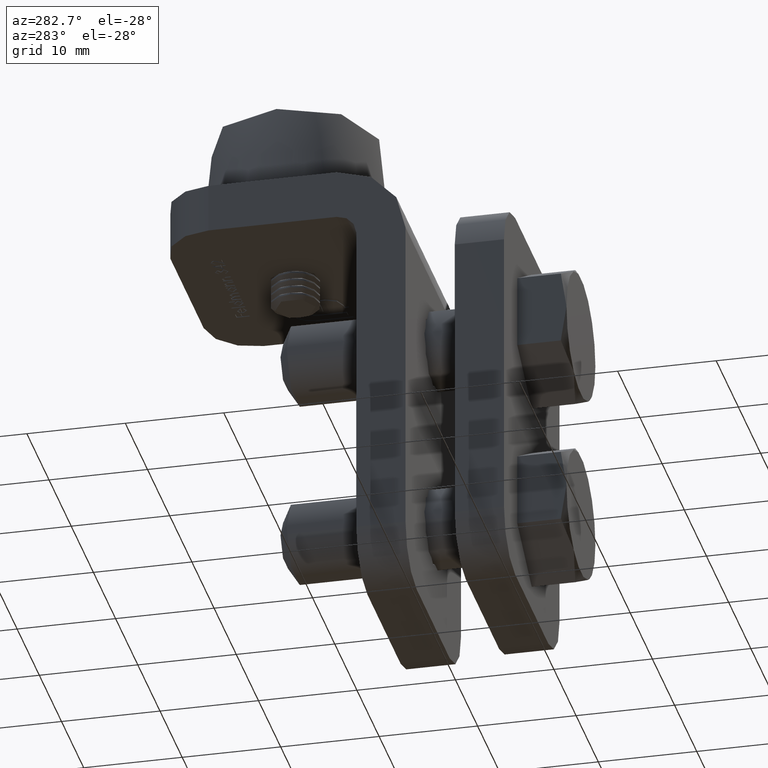
[diagram: clean part render]
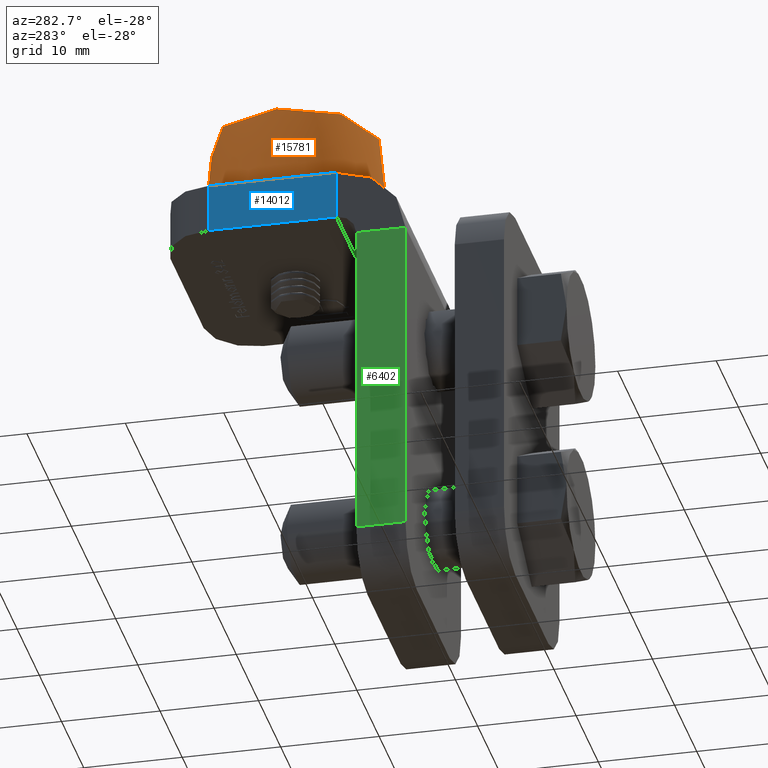
[diagram: same view with three faces highlighted in distinct colors, each labeled with its STEP entity id]
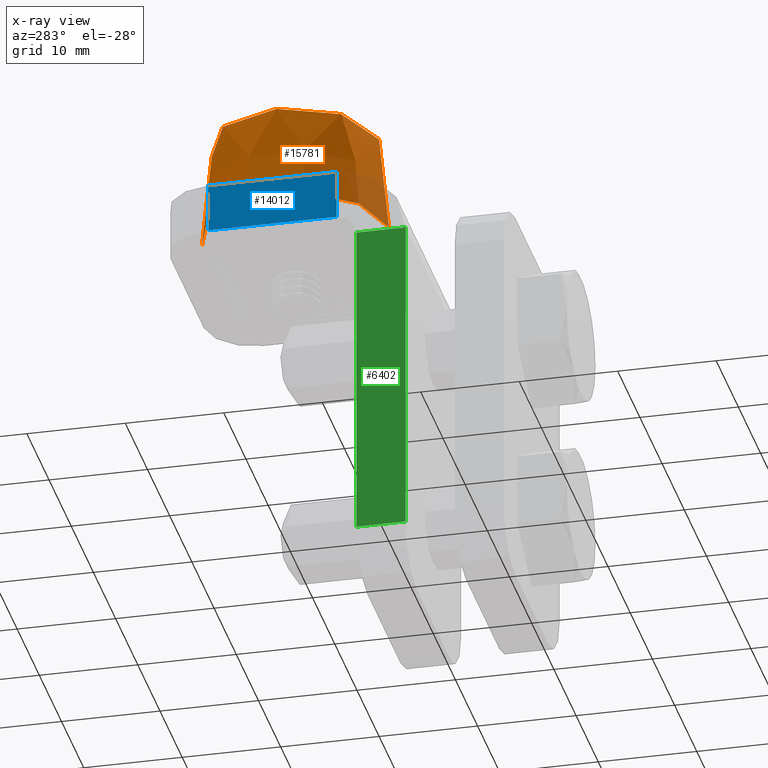
[diagram: x-ray of the same camera — body ghosted, the three highlighted faces saturated]
A machine part, auxiliary view with three faces highlighted in distinct colors.
The next image is the same camera in x-ray (body ghosted, the three faces saturated) — at least one of them is partly hidden behind the body in this view.
Their STEP definitions:

[orange] entity #15781 — the highlighted conical surface has half-angle 5.711 deg.
#82 = LINE ( 'NONE', #9478, #6725 ) ;
#476 = CARTESIAN_POINT ( 'NONE',  ( 2.225765192706795818E-14, 0.000000000000000000, 9.500000000000000000 ) ) ;
#1074 = LINE ( 'NONE', #2941, #16155 ) ;
#1158 = AXIS2_PLACEMENT_3D ( 'NONE', #12715, #18192, #8437 ) ;
#1472 = ORIENTED_EDGE ( 'NONE', *, *, #15301, .T. ) ;
#2061 = ORIENTED_EDGE ( 'NONE', *, *, #8037, .F. ) ;
#2076 = VERTEX_POINT ( 'NONE', #10729 ) ;
#2315 = AXIS2_PLACEMENT_3D ( 'NONE', #7882, #16332, #17694 ) ;
#2615 = EDGE_CURVE ( 'NONE', #11546, #10801, #9705, .T. ) ;
#2941 = CARTESIAN_POINT ( 'NONE',  ( 2.225765192706795818E-14, 0.000000000000000000, 9.500000000000000000 ) ) ;
#4541 = CIRCLE ( 'NONE', #2315, 9.500000000000000000 ) ;
#4879 = ORIENTED_EDGE ( 'NONE', *, *, #11555, .F. ) ;
#5036 = ORIENTED_EDGE ( 'NONE', *, *, #2615, .T. ) ;
#5560 = DIRECTION ( 'NONE',  ( 0.000000000000000000, -1.000000000000000000, 0.000000000000000000 ) ) ;
#6725 = VECTOR ( 'NONE', #13651, 1000.000000000000114 ) ;
#7882 = CARTESIAN_POINT ( 'NONE',  ( 0.000000000000000000, 0.000000000000000000, 0.000000000000000000 ) ) ;
#8037 = EDGE_CURVE ( 'NONE', #2076, #18136, #4541, .T. ) ;
#8437 = DIRECTION ( 'NONE',  ( -2.220446049250313081E-15, 0.000000000000000000, -1.000000000000000000 ) ) ;
#9478 = CARTESIAN_POINT ( 'NONE',  ( -2.109423746787797427E-14, 0.000000000000000000, -9.500000000000000000 ) ) ;
#9705 = CIRCLE ( 'NONE', #12317, 8.499999999999998224 ) ;
#10107 = DIRECTION ( 'NONE',  ( 2.331283308861227795E-16, -0.9950371902099890420, 0.09950371902099898469 ) ) ;
#10729 = CARTESIAN_POINT ( 'NONE',  ( -2.109423746787797427E-14, 0.000000000000000000, -9.500000000000000000 ) ) ;
#10801 = VERTEX_POINT ( 'NONE', #13817 ) ;
#11546 = VERTEX_POINT ( 'NONE', #13711 ) ;
#11555 = EDGE_CURVE ( 'NONE', #11546, #2076, #82, .T. ) ;
#12317 = AXIS2_PLACEMENT_3D ( 'NONE', #14051, #5560, #15455 ) ;
#12715 = CARTESIAN_POINT ( 'NONE',  ( 0.000000000000000000, 0.000000000000000000, 0.000000000000000000 ) ) ;
#13651 = DIRECTION ( 'NONE',  ( -2.209426397858904199E-16, -0.9950371902099890420, -0.09950371902099898469 ) ) ;
#13711 = CARTESIAN_POINT ( 'NONE',  ( -1.887379141862765803E-14, 10.00000000000000178, -8.499999999999998224 ) ) ;
#13817 = CARTESIAN_POINT ( 'NONE',  ( 2.108619656248543091E-14, 10.00000000000000178, 8.499999999999998224 ) ) ;
#14051 = CARTESIAN_POINT ( 'NONE',  ( 0.000000000000000000, 10.00000000000000178, 0.000000000000000000 ) ) ;
#14828 = FACE_OUTER_BOUND ( 'NONE', #18080, .T. ) ;
#15301 = EDGE_CURVE ( 'NONE', #10801, #18136, #1074, .T. ) ;
#15455 = DIRECTION ( 'NONE',  ( -2.220446049250313081E-15, 0.000000000000000000, -1.000000000000000000 ) ) ;
#15781 = ADVANCED_FACE ( 'NONE', ( #14828 ), #16353, .T. ) ;
#16155 = VECTOR ( 'NONE', #10107, 1000.000000000000114 ) ;
#16332 = DIRECTION ( 'NONE',  ( 0.000000000000000000, -1.000000000000000000, 0.000000000000000000 ) ) ;
#16353 = CONICAL_SURFACE ( 'NONE', #1158, 9.500000000000000000, 0.09966865249116210745 ) ;
#17694 = DIRECTION ( 'NONE',  ( -2.220446049250313081E-15, 0.000000000000000000, -1.000000000000000000 ) ) ;
#18080 = EDGE_LOOP ( 'NONE', ( #5036, #1472, #2061, #4879 ) ) ;
#18136 = VERTEX_POINT ( 'NONE', #476 ) ;
#18192 = DIRECTION ( 'NONE',  ( 0.000000000000000000, -1.000000000000000000, 0.000000000000000000 ) ) ;

[blue] entity #14012 — the highlighted planar face has unit normal (1, 0, 0).
#844 = VECTOR ( 'NONE', #5403, 1000.000000000000000 ) ;
#3246 = CARTESIAN_POINT ( 'NONE',  ( -12.50000000000000000, 20.00000000000000000, 45.00000000000000000 ) ) ;
#3577 = CARTESIAN_POINT ( 'NONE',  ( -12.50000000000000000, 7.000000000000000000, 40.00000000000000000 ) ) ;
#3782 = FACE_OUTER_BOUND ( 'NONE', #14067, .T. ) ;
#4310 = LINE ( 'NONE', #10711, #14736 ) ;
#5134 = DIRECTION ( 'NONE',  ( 0.000000000000000000, -6.938893903907233308E-16, -1.000000000000000000 ) ) ;
#5403 = DIRECTION ( 'NONE',  ( 0.000000000000000000, -1.000000000000000000, 3.854941057726237604E-16 ) ) ;
#5799 = VERTEX_POINT ( 'NONE', #6640 ) ;
#5958 = PLANE ( 'NONE',  #15164 ) ;
#6020 = DIRECTION ( 'NONE',  ( 0.000000000000000000, 0.000000000000000000, -1.000000000000000000 ) ) ;
#6108 = EDGE_CURVE ( 'NONE', #8549, #6711, #11431, .T. ) ;
#6640 = CARTESIAN_POINT ( 'NONE',  ( -12.50000000000000000, 19.99999999999999645, 40.00000000000000000 ) ) ;
#6711 = VERTEX_POINT ( 'NONE', #12378 ) ;
#7322 = DIRECTION ( 'NONE',  ( 1.000000000000000000, 0.000000000000000000, 0.000000000000000000 ) ) ;
#7627 = ORIENTED_EDGE ( 'NONE', *, *, #16841, .T. ) ;
#8088 = EDGE_CURVE ( 'NONE', #17018, #5799, #4310, .T. ) ;
#8330 = CARTESIAN_POINT ( 'NONE',  ( -12.50000000000000000, 24.99999999999999645, 40.00000000000000000 ) ) ;
#8549 = VERTEX_POINT ( 'NONE', #3577 ) ;
#8823 = CARTESIAN_POINT ( 'NONE',  ( -12.50000000000000000, 7.000000000000000000, 38.00000000000000000 ) ) ;
#8985 = ORIENTED_EDGE ( 'NONE', *, *, #8088, .T. ) ;
#9137 = ORIENTED_EDGE ( 'NONE', *, *, #6108, .T. ) ;
#10711 = CARTESIAN_POINT ( 'NONE',  ( -12.50000000000000000, 19.99999999999999645, 40.00000000000000711 ) ) ;
#10967 = VECTOR ( 'NONE', #12099, 1000.000000000000000 ) ;
#10973 = CARTESIAN_POINT ( 'NONE',  ( -12.50000000000000000, 25.00000000000000000, 45.00000000000000000 ) ) ;
#11431 = LINE ( 'NONE', #16510, #10967 ) ;
#12099 = DIRECTION ( 'NONE',  ( 0.000000000000000000, -1.734723475976805615E-16, 1.000000000000000000 ) ) ;
#12378 = CARTESIAN_POINT ( 'NONE',  ( -12.50000000000000000, 6.999999999999999112, 45.00000000000000711 ) ) ;
#12436 = VECTOR ( 'NONE', #16461, 1000.000000000000000 ) ;
#13839 = EDGE_CURVE ( 'NONE', #17018, #6711, #16185, .T. ) ;
#14012 = ADVANCED_FACE ( 'NONE', ( #3782 ), #5958, .F. ) ;
#14067 = EDGE_LOOP ( 'NONE', ( #15733, #8985, #7627, #9137 ) ) ;
#14736 = VECTOR ( 'NONE', #5134, 1000.000000000000000 ) ;
#15164 = AXIS2_PLACEMENT_3D ( 'NONE', #8823, #7322, #6020 ) ;
#15733 = ORIENTED_EDGE ( 'NONE', *, *, #13839, .F. ) ;
#16185 = LINE ( 'NONE', #10973, #12436 ) ;
#16461 = DIRECTION ( 'NONE',  ( 0.000000000000000000, -1.000000000000000000, 3.854941057726237604E-16 ) ) ;
#16510 = CARTESIAN_POINT ( 'NONE',  ( -12.50000000000000000, 7.000000000000000000, 40.00000000000000000 ) ) ;
#16841 = EDGE_CURVE ( 'NONE', #5799, #8549, #17452, .T. ) ;
#17018 = VERTEX_POINT ( 'NONE', #3246 ) ;
#17452 = LINE ( 'NONE', #8330, #844 ) ;

[green] entity #6402 — the highlighted planar face has unit normal (-1, 0, 0).
#1260 = VERTEX_POINT ( 'NONE', #15610 ) ;
#1593 = CARTESIAN_POINT ( 'NONE',  ( -12.50000000000000000, -2.602085213965210642E-15, 38.00000000000000000 ) ) ;
#1803 = VERTEX_POINT ( 'NONE', #2188 ) ;
#1858 = DIRECTION ( 'NONE',  ( -0.000000000000000000, 0.000000000000000000, 1.000000000000000000 ) ) ;
#2188 = CARTESIAN_POINT ( 'NONE',  ( -12.50000000000000000, 0.000000000000000000, 4.999999999999997335 ) ) ;
#2751 = ORIENTED_EDGE ( 'NONE', *, *, #18035, .T. ) ;
#2938 = CARTESIAN_POINT ( 'NONE',  ( -12.50000000000000000, 5.000000000000000000, 38.00000000000000000 ) ) ;
#3874 = FACE_OUTER_BOUND ( 'NONE', #12249, .T. ) ;
#5887 = DIRECTION ( 'NONE',  ( -1.000000000000000000, 0.000000000000000000, -0.000000000000000000 ) ) ;
#6402 = ADVANCED_FACE ( 'NONE', ( #3874 ), #11770, .T. ) ;
#6962 = VECTOR ( 'NONE', #9948, 1000.000000000000000 ) ;
#7180 = CARTESIAN_POINT ( 'NONE',  ( -12.50000000000000000, 5.000000000000000000, 4.999999999999997335 ) ) ;
#7561 = CARTESIAN_POINT ( 'NONE',  ( -12.50000000000000000, 7.000000000000000000, 40.00000000000000000 ) ) ;
#7673 = ORIENTED_EDGE ( 'NONE', *, *, #10894, .T. ) ;
#7696 = VECTOR ( 'NONE', #8674, 1000.000000000000000 ) ;
#8502 = LINE ( 'NONE', #15197, #11583 ) ;
#8674 = DIRECTION ( 'NONE',  ( 0.000000000000000000, -1.000000000000000000, 0.000000000000000000 ) ) ;
#9690 = CARTESIAN_POINT ( 'NONE',  ( -12.50000000000000000, 5.000000000000000000, 38.00000000000000000 ) ) ;
#9792 = EDGE_CURVE ( 'NONE', #1260, #1803, #8502, .T. ) ;
#9948 = DIRECTION ( 'NONE',  ( 0.000000000000000000, 1.000000000000000000, 0.000000000000000000 ) ) ;
#10136 = CARTESIAN_POINT ( 'NONE',  ( -12.50000000000000000, 7.000000000000000000, 4.999999999999997335 ) ) ;
#10894 = EDGE_CURVE ( 'NONE', #1260, #16330, #15816, .T. ) ;
#11583 = VECTOR ( 'NONE', #12313, 1000.000000000000000 ) ;
#11770 = PLANE ( 'NONE',  #18163 ) ;
#12249 = EDGE_LOOP ( 'NONE', ( #15852, #2751, #16055, #7673 ) ) ;
#12313 = DIRECTION ( 'NONE',  ( 0.000000000000000000, 0.000000000000000000, -1.000000000000000000 ) ) ;
#12854 = DIRECTION ( 'NONE',  ( 0.000000000000000000, 0.000000000000000000, -1.000000000000000000 ) ) ;
#13500 = EDGE_CURVE ( 'NONE', #16330, #16423, #14454, .T. ) ;
#14454 = LINE ( 'NONE', #2938, #16200 ) ;
#14984 = LINE ( 'NONE', #10136, #7696 ) ;
#15197 = CARTESIAN_POINT ( 'NONE',  ( -12.50000000000000000, 0.000000000000000000, 38.00000000000000000 ) ) ;
#15610 = CARTESIAN_POINT ( 'NONE',  ( -12.50000000000000000, -2.602085213965210642E-15, 38.00000000000000000 ) ) ;
#15816 = LINE ( 'NONE', #1593, #6962 ) ;
#15852 = ORIENTED_EDGE ( 'NONE', *, *, #13500, .T. ) ;
#16055 = ORIENTED_EDGE ( 'NONE', *, *, #9792, .F. ) ;
#16200 = VECTOR ( 'NONE', #12854, 1000.000000000000000 ) ;
#16330 = VERTEX_POINT ( 'NONE', #9690 ) ;
#16423 = VERTEX_POINT ( 'NONE', #7180 ) ;
#18035 = EDGE_CURVE ( 'NONE', #16423, #1803, #14984, .T. ) ;
#18163 = AXIS2_PLACEMENT_3D ( 'NONE', #7561, #5887, #1858 ) ;